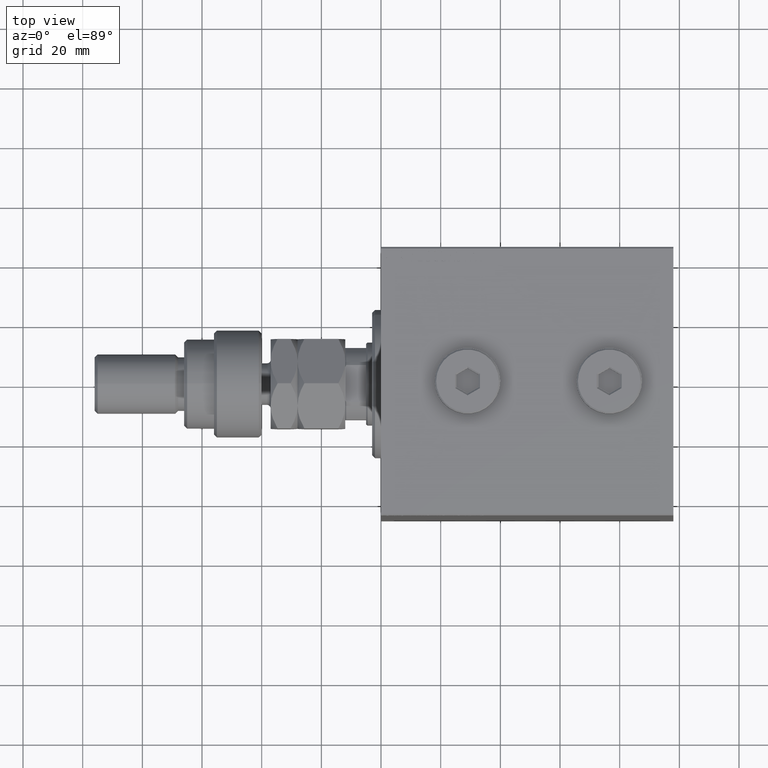
[diagram: clean part render]
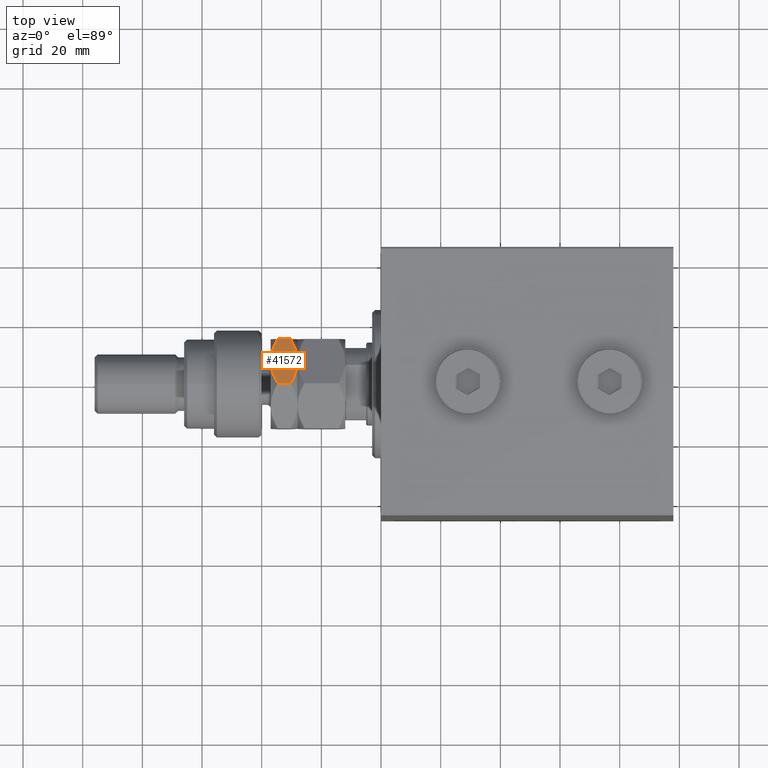
[diagram: same view with one face highlighted and labeled with its STEP entity id]
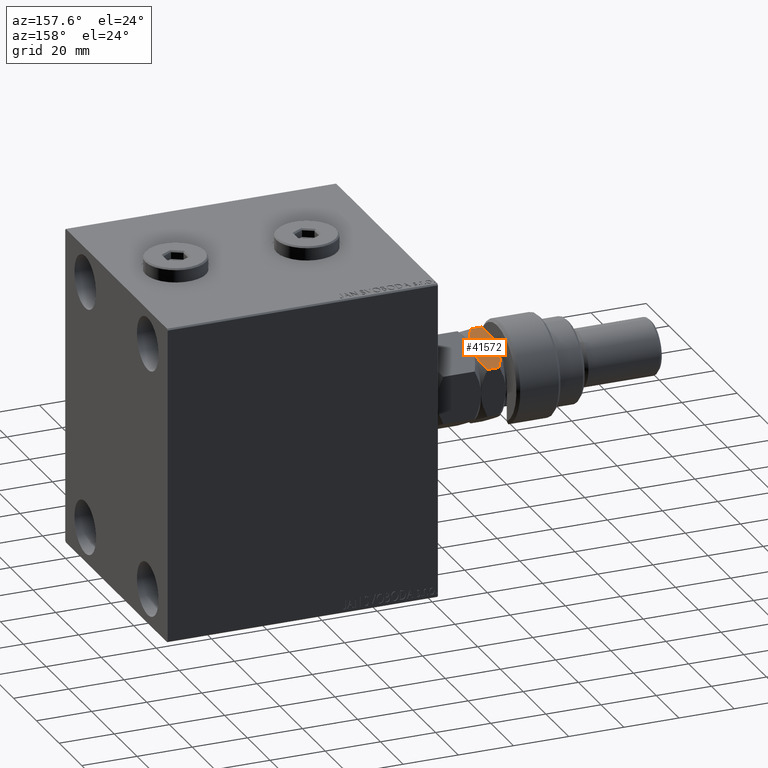
[diagram: same view with one face highlighted and labeled with its STEP entity id]
A machine part, top view. The second image highlights one B-rep face of the part: STEP entity #41572.
A second angle (auxiliary view) of the same face is appended — the face is thin or edge-on in the first view.
In plain terms, the highlighted planar face has unit normal (-0, -0.5, -0.866).
Its self-contained STEP definition (entity closure, byte-faithful):
#1417 = ORIENTED_EDGE ( 'NONE', *, *, #14789, .T. ) ;
#1527 = VECTOR ( 'NONE', #29099, 1000.000000000000000 ) ;
#1968 = VERTEX_POINT ( 'NONE', #31539 ) ;
#2111 = CARTESIAN_POINT ( 'NONE',  ( 13.82389157469335750, 9.339280553791359907, 23.35851844025819801 ) ) ;
#2493 = CARTESIAN_POINT ( 'NONE',  ( 7.499999999999998224, 12.99038105676657651, 25.00000000000000000 ) ) ;
#5285 = CARTESIAN_POINT ( 'NONE',  ( 2.378834511187505107, 15.94708733029709080, 17.06448606774400290 ) ) ;
#5438 = EDGE_CURVE ( 'NONE', #21564, #7647, #46685, .T. ) ;
#5507 = CARTESIAN_POINT ( 'NONE',  ( 10.75222765045651308, 11.11270654730956409, 24.55242859148698287 ) ) ;
#5986 = EDGE_CURVE ( 'NONE', #15205, #21564, #23071, .T. ) ;
#6487 = ORIENTED_EDGE ( 'NONE', *, *, #5438, .F. ) ;
#6593 = CARTESIAN_POINT ( 'NONE',  ( 6.195449321423086353, 13.74356374221446764, 25.00000000000000000 ) ) ;
#7380 = EDGE_CURVE ( 'NONE', #7647, #47351, #40752, .T. ) ;
#7506 = CARTESIAN_POINT ( 'NONE',  ( 8.804550678576910983, 12.23719837131868715, 16.00000000000000000 ) ) ;
#7647 = VERTEX_POINT ( 'NONE', #10141 ) ;
#8181 = FACE_OUTER_BOUND ( 'NONE', #20404, .T. ) ;
#8232 = CARTESIAN_POINT ( 'NONE',  ( 13.82525345580783593, 9.338494271363314780, 17.64226784216978317 ) ) ;
#10141 = CARTESIAN_POINT ( 'NONE',  ( 7.500000000000000000, 12.99038105676657651, 16.00000000000000000 ) ) ;
#10631 = VERTEX_POINT ( 'NONE', #41167 ) ;
#10671 = LINE ( 'NONE', #21820, #1527 ) ;
#11145 = CARTESIAN_POINT ( 'NONE',  ( 10.08691881950258917, 11.49682277995504798, 16.23032992193921586 ) ) ;
#12091 = CARTESIAN_POINT ( 'NONE',  ( 4.881674457977375425, 14.50207201327940787, 16.28380266194628945 ) ) ;
#13027 = CARTESIAN_POINT ( 'NONE',  ( 7.499999999999998224, 12.99038105676657651, 25.00000000000000000 ) ) ;
#13671 = B_SPLINE_CURVE_WITH_KNOTS ( 'NONE', 3,
 ( #46011, #2111, #23939, #5507, #31709, #16680, #31470, #13027 ),
 .UNSPECIFIED., .F., .F.,
 ( 4, 2, 2, 4 ),
 ( 2.544309033627217716E-07, 0.004488823491893905240, 0.006733108022389176252, 0.008977392552884448998 ),
 .UNSPECIFIED. ) ;
#14789 = EDGE_CURVE ( 'NONE', #10631, #47351, #10671, .T. ) ;
#14837 = CARTESIAN_POINT ( 'NONE',  ( 7.606663105073224303E-16, 17.32050807568877104, 22.67949192431123606 ) ) ;
#15205 = VERTEX_POINT ( 'NONE', #27753 ) ;
#16220 = CARTESIAN_POINT ( 'NONE',  ( 7.606663105073224303E-16, 17.32050807568877104, 18.32050807568876749 ) ) ;
#16680 = CARTESIAN_POINT ( 'NONE',  ( 8.823580389329297446, 12.22621156269319798, 24.94046462602530667 ) ) ;
#18626 = CARTESIAN_POINT ( 'NONE',  ( 14.99999999999999645, 8.660254037844385522, 25.00000000000000000 ) ) ;
#19204 = CARTESIAN_POINT ( 'NONE',  ( 1.174746544192161180, 16.64226784216984711, 23.35773215783022039 ) ) ;
#20404 = EDGE_LOOP ( 'NONE', ( #6487, #33837, #25569, #24897, #1417, #23899 ) ) ;
#20620 = VECTOR ( 'NONE', #36908, 1000.000000000000000 ) ;
#21390 = CARTESIAN_POINT ( 'NONE',  ( 4.913081180497410827, 14.48393933357810504, 24.76967007806078769 ) ) ;
#21564 = VERTEX_POINT ( 'NONE', #26930 ) ;
#21820 = CARTESIAN_POINT ( 'NONE',  ( 14.99999999999999645, 8.660254037844385522, 25.00000000000000000 ) ) ;
#21997 = PLANE ( 'NONE',  #40585 ) ;
#22489 = DIRECTION ( 'NONE',  ( 0.8660254037844385966, -0.5000000000000000000, 0.000000000000000000 ) ) ;
#23023 = CARTESIAN_POINT ( 'NONE',  ( 14.99999999999999645, 8.660254037844387298, 18.32050807568876394 ) ) ;
#23071 = LINE ( 'NONE', #37876, #20620 ) ;
#23334 = B_SPLINE_CURVE_WITH_KNOTS ( 'NONE', 3,
 ( #2493, #6593, #21390, #37157, #19204, #14837 ),
 .UNSPECIFIED., .F., .F.,
 ( 4, 2, 4 ),
 ( 0.008977392552884448998, 0.01343452311421656532, 0.01789165367554867991 ),
 .UNSPECIFIED. ) ;
#23899 = ORIENTED_EDGE ( 'NONE', *, *, #7380, .F. ) ;
#23939 = CARTESIAN_POINT ( 'NONE',  ( 12.62116548881249223, 10.03367478323605866, 23.93551393225599000 ) ) ;
#24897 = ORIENTED_EDGE ( 'NONE', *, *, #45521, .F. ) ;
#25569 = ORIENTED_EDGE ( 'NONE', *, *, #31457, .F. ) ;
#26626 = CARTESIAN_POINT ( 'NONE',  ( 14.99999999999999645, 8.660254037844387298, 18.32050807568876394 ) ) ;
#26930 = CARTESIAN_POINT ( 'NONE',  ( 7.606663105073224303E-16, 17.32050807568877104, 18.32050807568876749 ) ) ;
#27127 = CARTESIAN_POINT ( 'NONE',  ( 6.176419610670696336, 13.75455055083995681, 16.05953537397469333 ) ) ;
#27363 = CARTESIAN_POINT ( 'NONE',  ( 7.500000000000000000, 12.99038105676657651, 16.00000000000000000 ) ) ;
#27753 = CARTESIAN_POINT ( 'NONE',  ( 7.606663105073224303E-16, 17.32050807568877104, 22.67949192431123606 ) ) ;
#29099 = DIRECTION ( 'NONE',  ( -0.000000000000000000, -0.000000000000000000, -1.000000000000000000 ) ) ;
#30762 = CARTESIAN_POINT ( 'NONE',  ( 1.176108425306642946, 16.64148155974180199, 17.64148155974179133 ) ) ;
#31457 = EDGE_CURVE ( 'NONE', #1968, #15205, #23334, .T. ) ;
#31470 = CARTESIAN_POINT ( 'NONE',  ( 8.156876182308248957, 12.61113341608665550, 25.00000000000000355 ) ) ;
#31539 = CARTESIAN_POINT ( 'NONE',  ( 7.499999999999998224, 12.99038105676657651, 25.00000000000000000 ) ) ;
#31709 = CARTESIAN_POINT ( 'NONE',  ( 10.11832554202262102, 11.47869010025374514, 24.71619733805371055 ) ) ;
#33837 = ORIENTED_EDGE ( 'NONE', *, *, #5986, .F. ) ;
#36908 = DIRECTION ( 'NONE',  ( -0.000000000000000000, -0.000000000000000000, -1.000000000000000000 ) ) ;
#37157 = CARTESIAN_POINT ( 'NONE',  ( 2.383929548160351519, 15.94414570932928576, 23.93952096862912171 ) ) ;
#37876 = CARTESIAN_POINT ( 'NONE',  ( 3.803331551779305683E-16, 17.32050807568877104, 25.00000000000000000 ) ) ;
#38288 = CARTESIAN_POINT ( 'NONE',  ( 6.843123817691748378, 13.36962869744649396, 16.00000000000000000 ) ) ;
#40585 = AXIS2_PLACEMENT_3D ( 'NONE', #18626, #41410, #22489 ) ;
#40752 = B_SPLINE_CURVE_WITH_KNOTS ( 'NONE', 3,
 ( #41458, #7506, #11145, #40983, #8232, #23023 ),
 .UNSPECIFIED., .F., .F.,
 ( 4, 2, 4 ),
 ( 0.008977392552884448998, 0.01343452311421656359, 0.01789165367554867991 ),
 .UNSPECIFIED. ) ;
#40983 = CARTESIAN_POINT ( 'NONE',  ( 12.61607045183964360, 10.03661640420386369, 17.06047903137087829 ) ) ;
#41167 = CARTESIAN_POINT ( 'NONE',  ( 14.99999999999999822, 8.660254037844385522, 22.67949192431123961 ) ) ;
#41410 = DIRECTION ( 'NONE',  ( -0.5000000000000001110, -0.8660254037844387076, 0.000000000000000000 ) ) ;
#41458 = CARTESIAN_POINT ( 'NONE',  ( 7.500000000000000000, 12.99038105676657651, 16.00000000000000000 ) ) ;
#41572 = ADVANCED_FACE ( 'NONE', ( #8181 ), #21997, .F. ) ;
#45521 = EDGE_CURVE ( 'NONE', #10631, #1968, #13671, .T. ) ;
#45551 = CARTESIAN_POINT ( 'NONE',  ( 4.247772349543485149, 14.86805556622358893, 16.44757140851302069 ) ) ;
#46011 = CARTESIAN_POINT ( 'NONE',  ( 14.99999999999999822, 8.660254037844385522, 22.67949192431123961 ) ) ;
#46685 = B_SPLINE_CURVE_WITH_KNOTS ( 'NONE', 3,
 ( #16220, #30762, #5285, #45551, #12091, #27127, #38288, #27363 ),
 .UNSPECIFIED., .F., .F.,
 ( 4, 2, 2, 4 ),
 ( 2.544309033643862443E-07, 0.004488823491893907842, 0.006733108022389177987, 0.008977392552884448998 ),
 .UNSPECIFIED. ) ;
#47351 = VERTEX_POINT ( 'NONE', #26626 ) ;